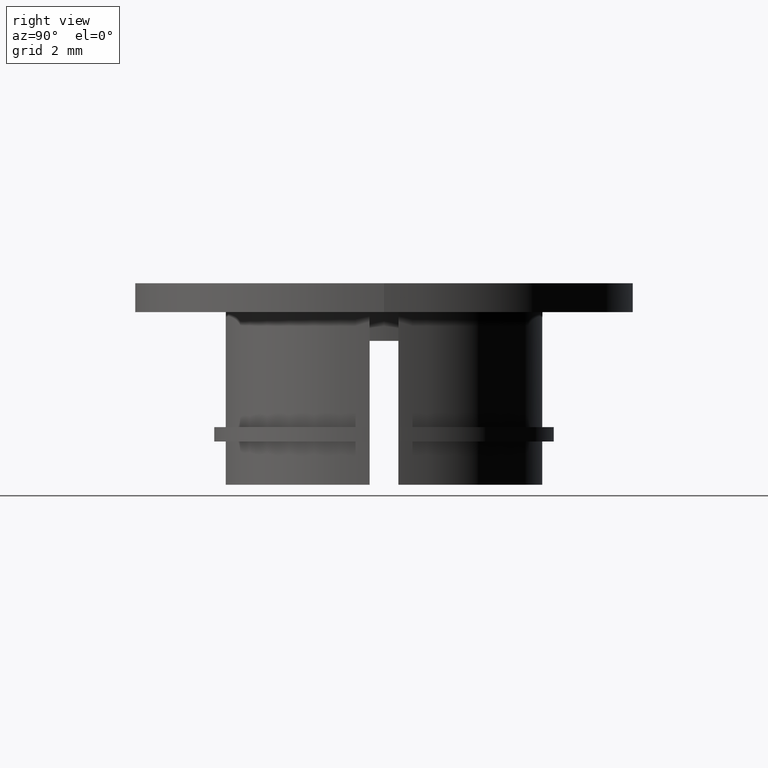
[diagram: clean part render]
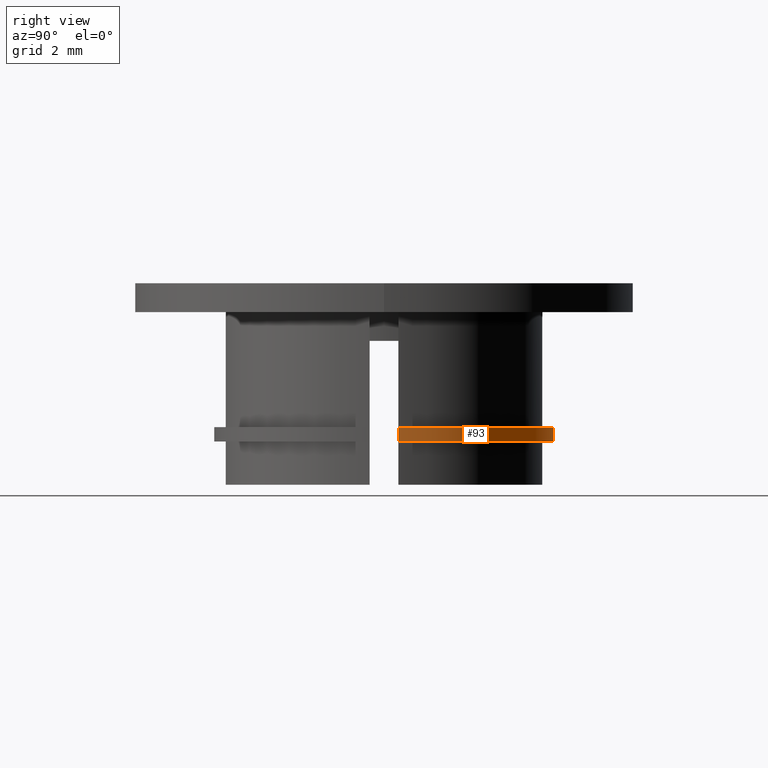
[diagram: same view with one face highlighted and labeled with its STEP entity id]
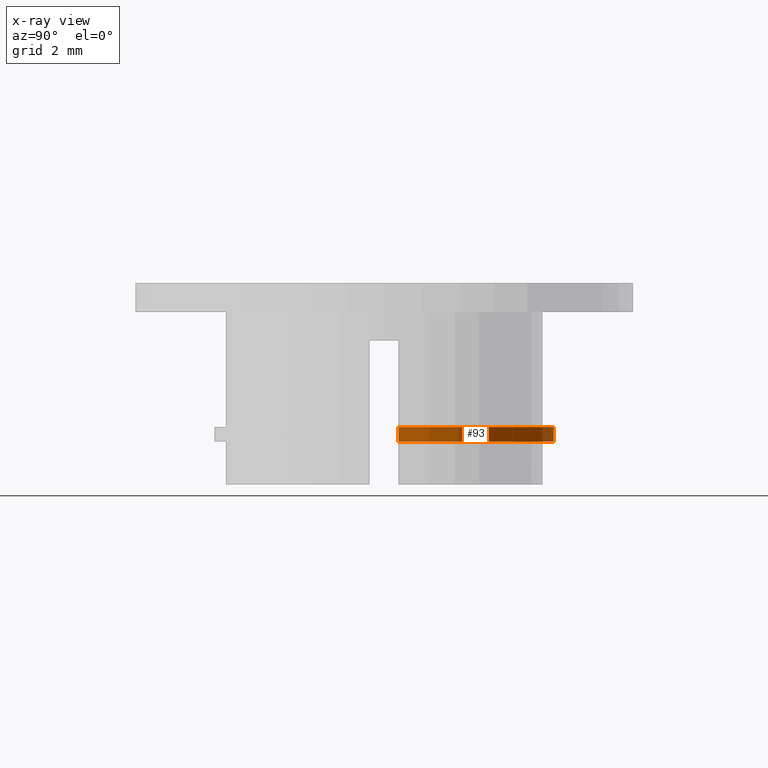
[diagram: x-ray of the same camera — body ghosted, the highlighted face saturated]
A machine part, right view. The second image highlights one B-rep face of the part: STEP entity #93.
The next image is the same camera in x-ray: the body ghosted, the highlighted face saturated — about 0% of this face is hidden behind the body in this view.
In plain terms, the highlighted cylindrical surface (partial cylindrical patch) has radius 5.9 mm, axis along (0, 0, -1).
Its self-contained STEP definition (entity closure, byte-faithful):
#93 = ADVANCED_FACE( '', ( #138 ), #139, .T. );
#138 = FACE_OUTER_BOUND( '', #188, .T. );
#139 = CYLINDRICAL_SURFACE( '', #189, 5.90000000000000 );
#188 = EDGE_LOOP( '', ( #346, #347, #348, #349 ) );
#189 = AXIS2_PLACEMENT_3D( '', #350, #351, #352 );
#346 = ORIENTED_EDGE( '', *, *, #405, .T. );
#347 = ORIENTED_EDGE( '', *, *, #440, .F. );
#348 = ORIENTED_EDGE( '', *, *, #438, .F. );
#349 = ORIENTED_EDGE( '', *, *, #442, .T. );
#350 = CARTESIAN_POINT( '', ( 0.000000000000000, 0.000000000000000, 6.00000000000000 ) );
#351 = DIRECTION( '', ( 6.12303176911189E-017, 0.000000000000000, -1.00000000000000 ) );
#352 = DIRECTION( '', ( 1.00000000000000, 0.000000000000000, 6.12303176911189E-017 ) );
#405 = EDGE_CURVE( '', #479, #477, #480, .T. );
#438 = EDGE_CURVE( '', #531, #533, #534, .T. );
#440 = EDGE_CURVE( '', #533, #477, #536, .T. );
#442 = EDGE_CURVE( '', #531, #479, #538, .T. );
#477 = VERTEX_POINT( '', #582 );
#479 = VERTEX_POINT( '', #585 );
#480 = LINE( '', #586, #587 );
#531 = VERTEX_POINT( '', #660 );
#533 = VERTEX_POINT( '', #663 );
#534 = LINE( '', #664, #665 );
#536 = CIRCLE( '', #668, 5.90000000000000 );
#538 = CIRCLE( '', #670, 5.90000000000000 );
#582 = CARTESIAN_POINT( '', ( -5.87877538267963, 0.500000000000002, 1.99999999999999 ) );
#585 = CARTESIAN_POINT( '', ( -5.87877538267963, 0.500000000000002, 1.50000000000000 ) );
#586 = CARTESIAN_POINT( '', ( -5.87877538267963, 0.500000000000002, -6.00000000017099 ) );
#587 = VECTOR( '', #705, 1000.00000000000 );
#660 = CARTESIAN_POINT( '', ( 5.87877538267963, 0.500000000000004, 1.50000000000000 ) );
#663 = CARTESIAN_POINT( '', ( 5.87877538267963, 0.500000000000004, 1.99999999999999 ) );
#664 = CARTESIAN_POINT( '', ( 5.87877538267963, 0.500000000000004, -6.00000000017099 ) );
#665 = VECTOR( '', #756, 1000.00000000000 );
#668 = AXIS2_PLACEMENT_3D( '', #758, #759, #760 );
#670 = AXIS2_PLACEMENT_3D( '', #764, #765, #766 );
#705 = DIRECTION( '', ( -6.12303176911189E-017, 0.000000000000000, 1.00000000000000 ) );
#756 = DIRECTION( '', ( -6.12303176911189E-017, 0.000000000000000, 1.00000000000000 ) );
#758 = CARTESIAN_POINT( '', ( 2.44921270764476E-016, 0.000000000000000, 1.99999999999999 ) );
#759 = DIRECTION( '', ( -6.12303176911189E-017, 0.000000000000000, 1.00000000000000 ) );
#760 = DIRECTION( '', ( 1.00000000000000, 0.000000000000000, 6.12303176911189E-017 ) );
#764 = CARTESIAN_POINT( '', ( 2.75536429610035E-016, 0.000000000000000, 1.50000000000000 ) );
#765 = DIRECTION( '', ( -6.12303176911189E-017, 0.000000000000000, 1.00000000000000 ) );
#766 = DIRECTION( '', ( 1.00000000000000, 0.000000000000000, 6.12303176911189E-017 ) );